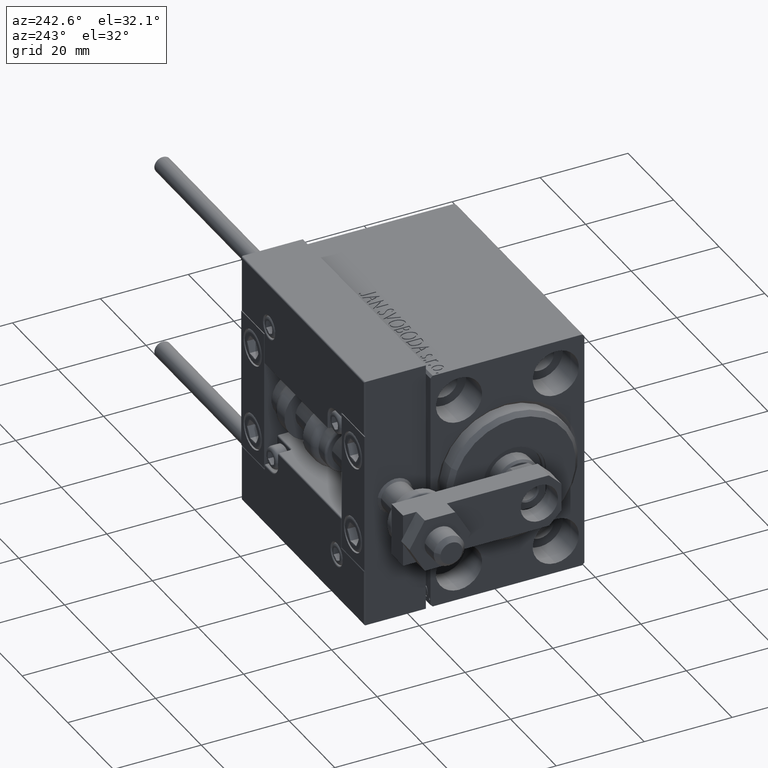
[diagram: clean part render]
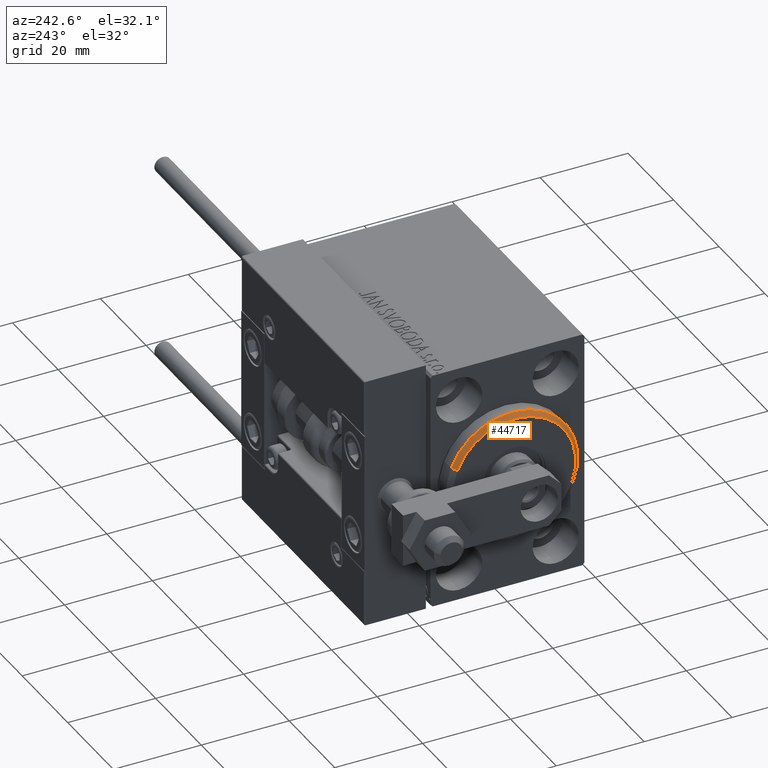
[diagram: same view with one face highlighted and labeled with its STEP entity id]
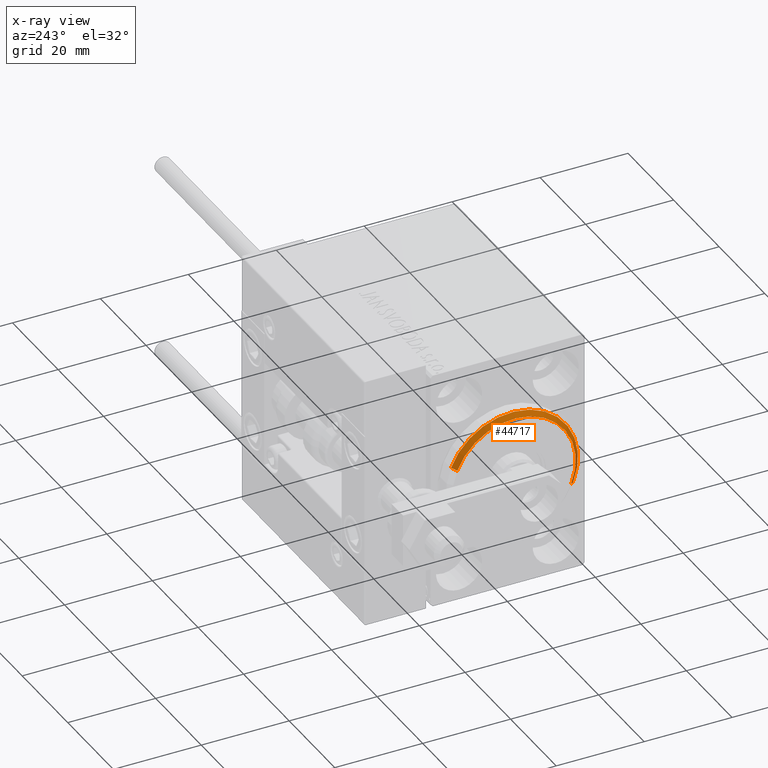
[diagram: x-ray of the same camera — body ghosted, the highlighted face saturated]
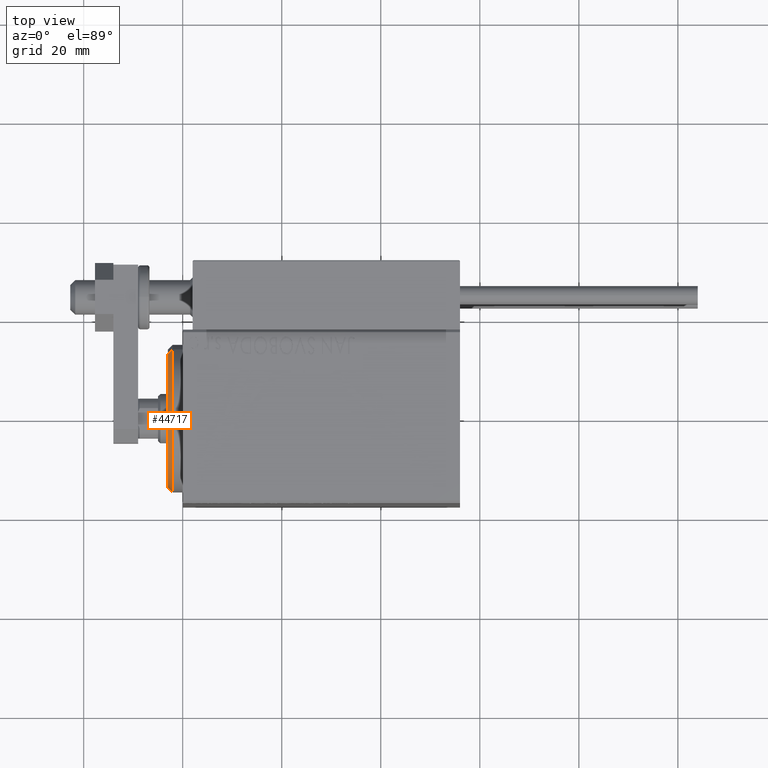
[diagram: same view with one face highlighted and labeled with its STEP entity id]
A machine part, auxiliary view. The second image highlights one B-rep face of the part: STEP entity #44717.
The next image is the same camera in x-ray: the body ghosted, the highlighted face saturated — about 0% of this face is hidden behind the body in this view.
A second angle (top view) of the same face is appended — the face is thin or edge-on in the first view.
In plain terms, the highlighted conical surface has half-angle 45 deg.
Its self-contained STEP definition (entity closure, byte-faithful):
#642 = EDGE_CURVE ( 'NONE', #32788, #1757, #10682, .T. ) ;
#1757 = VERTEX_POINT ( 'NONE', #46261 ) ;
#3658 = CIRCLE ( 'NONE', #32022, 15.00000000000000000 ) ;
#4215 = CARTESIAN_POINT ( 'NONE',  ( 3.000000000000000000, 0.000000000000000000, 13.99999999999999645 ) ) ;
#4578 = ORIENTED_EDGE ( 'NONE', *, *, #36321, .F. ) ;
#5783 = DIRECTION ( 'NONE',  ( 0.000000000000000000, 0.000000000000000000, -1.000000000000000000 ) ) ;
#6545 = LINE ( 'NONE', #26570, #49796 ) ;
#9112 = ORIENTED_EDGE ( 'NONE', *, *, #642, .F. ) ;
#10682 = CIRCLE ( 'NONE', #48036, 13.99999999999999645 ) ;
#11702 = DIRECTION ( 'NONE',  ( -1.000000000000000000, 0.000000000000000000, 0.000000000000000000 ) ) ;
#13662 = CONICAL_SURFACE ( 'NONE', #49388, 13.99999999999999645, 0.7853981633974473908 ) ;
#13929 = DIRECTION ( 'NONE',  ( -0.7071067811865482389, 0.000000000000000000, 0.7071067811865469066 ) ) ;
#14153 = CARTESIAN_POINT ( 'NONE',  ( 1.999999999999995781, 0.000000000000000000, 15.00000000000000000 ) ) ;
#15528 = CARTESIAN_POINT ( 'NONE',  ( 3.000000000000000000, 0.000000000000000000, 0.000000000000000000 ) ) ;
#18558 = DIRECTION ( 'NONE',  ( 1.000000000000000000, -0.000000000000000000, 0.000000000000000000 ) ) ;
#20087 = EDGE_CURVE ( 'NONE', #32788, #32653, #6545, .T. ) ;
#22147 = DIRECTION ( 'NONE',  ( -0.7071067811865482389, 8.659560562354926695E-17, -0.7071067811865469066 ) ) ;
#25658 = DIRECTION ( 'NONE',  ( 0.000000000000000000, 0.000000000000000000, -1.000000000000000000 ) ) ;
#25945 = CARTESIAN_POINT ( 'NONE',  ( 3.000000000000000000, 1.714505518806294244E-15, -13.99999999999999645 ) ) ;
#26570 = CARTESIAN_POINT ( 'NONE',  ( 3.000000000000000000, 0.000000000000000000, 13.99999999999999645 ) ) ;
#28599 = FACE_OUTER_BOUND ( 'NONE', #28616, .T. ) ;
#28616 = EDGE_LOOP ( 'NONE', ( #33763, #9112, #39147, #4578 ) ) ;
#28632 = CARTESIAN_POINT ( 'NONE',  ( 1.999999999999995781, 0.000000000000000000, 0.000000000000000000 ) ) ;
#29752 = CARTESIAN_POINT ( 'NONE',  ( 1.999999999999995781, 1.836970198721029589E-15, -15.00000000000000000 ) ) ;
#29781 = EDGE_CURVE ( 'NONE', #1757, #40113, #37666, .T. ) ;
#32022 = AXIS2_PLACEMENT_3D ( 'NONE', #28632, #47977, #5783 ) ;
#32653 = VERTEX_POINT ( 'NONE', #14153 ) ;
#32788 = VERTEX_POINT ( 'NONE', #4215 ) ;
#33763 = ORIENTED_EDGE ( 'NONE', *, *, #29781, .F. ) ;
#36321 = EDGE_CURVE ( 'NONE', #40113, #32653, #3658, .T. ) ;
#37666 = LINE ( 'NONE', #25945, #41213 ) ;
#37885 = CARTESIAN_POINT ( 'NONE',  ( 3.000000000000000000, 0.000000000000000000, 0.000000000000000000 ) ) ;
#39147 = ORIENTED_EDGE ( 'NONE', *, *, #20087, .T. ) ;
#40113 = VERTEX_POINT ( 'NONE', #29752 ) ;
#41213 = VECTOR ( 'NONE', #22147, 999.9999999999998863 ) ;
#44717 = ADVANCED_FACE ( 'NONE', ( #28599 ), #13662, .T. ) ;
#46261 = CARTESIAN_POINT ( 'NONE',  ( 3.000000000000000000, 1.775737858763662015E-15, -13.99999999999999645 ) ) ;
#47947 = DIRECTION ( 'NONE',  ( 0.000000000000000000, 0.000000000000000000, 1.000000000000000000 ) ) ;
#47977 = DIRECTION ( 'NONE',  ( -1.000000000000000000, 0.000000000000000000, 0.000000000000000000 ) ) ;
#48036 = AXIS2_PLACEMENT_3D ( 'NONE', #37885, #18558, #25658 ) ;
#49388 = AXIS2_PLACEMENT_3D ( 'NONE', #15528, #11702, #47947 ) ;
#49796 = VECTOR ( 'NONE', #13929, 999.9999999999998863 ) ;